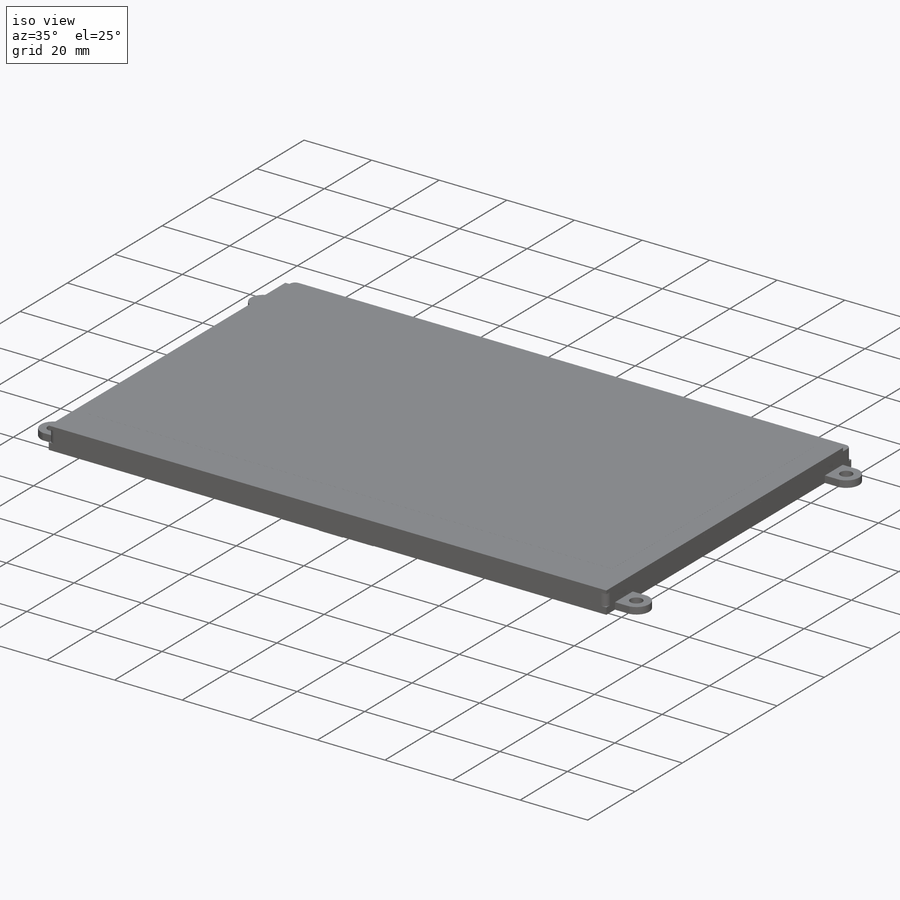
[diagram: iso view]
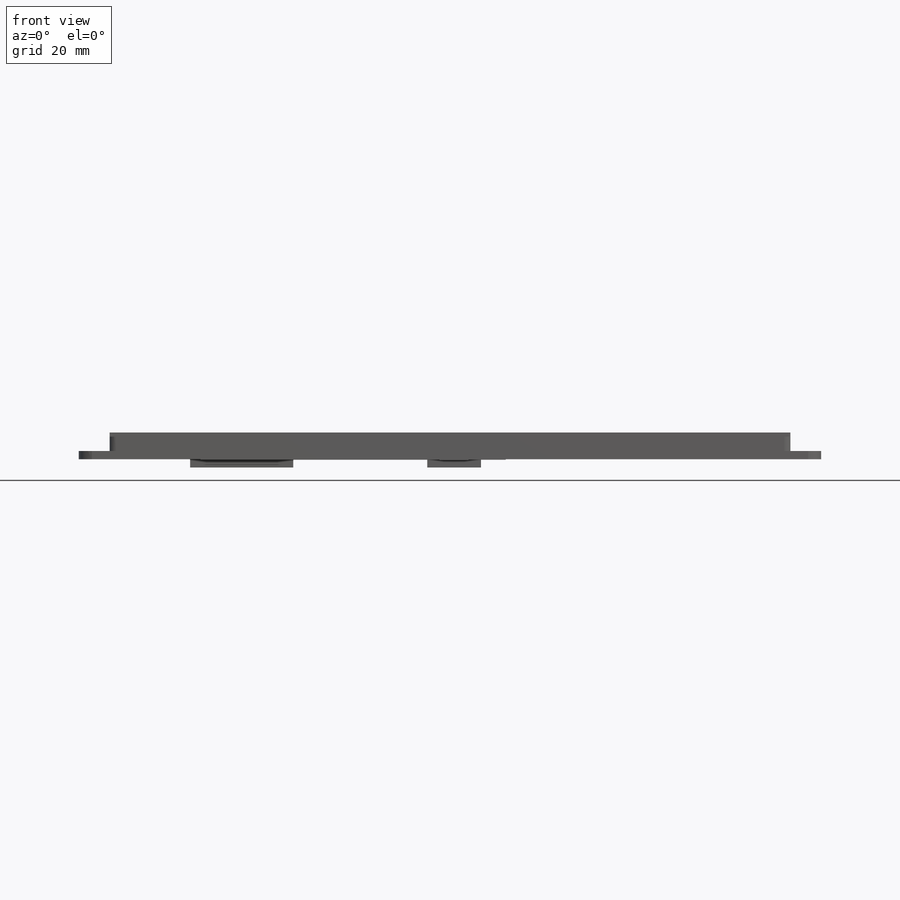
[diagram: front view]
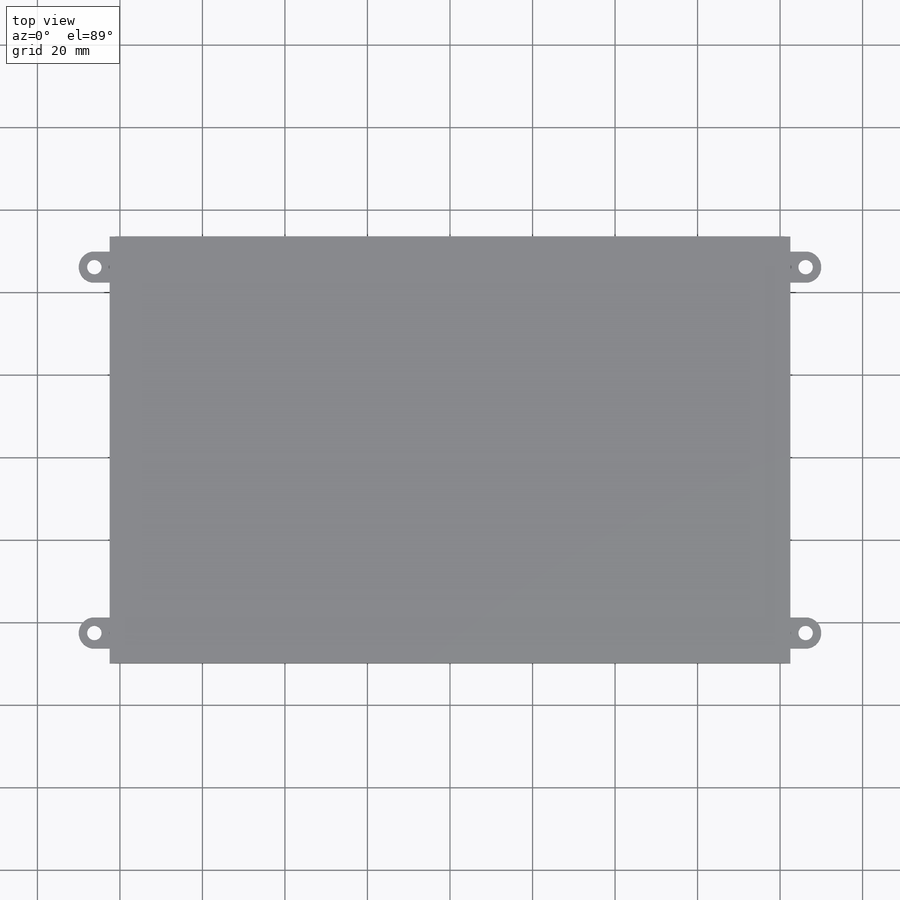
[diagram: top view]
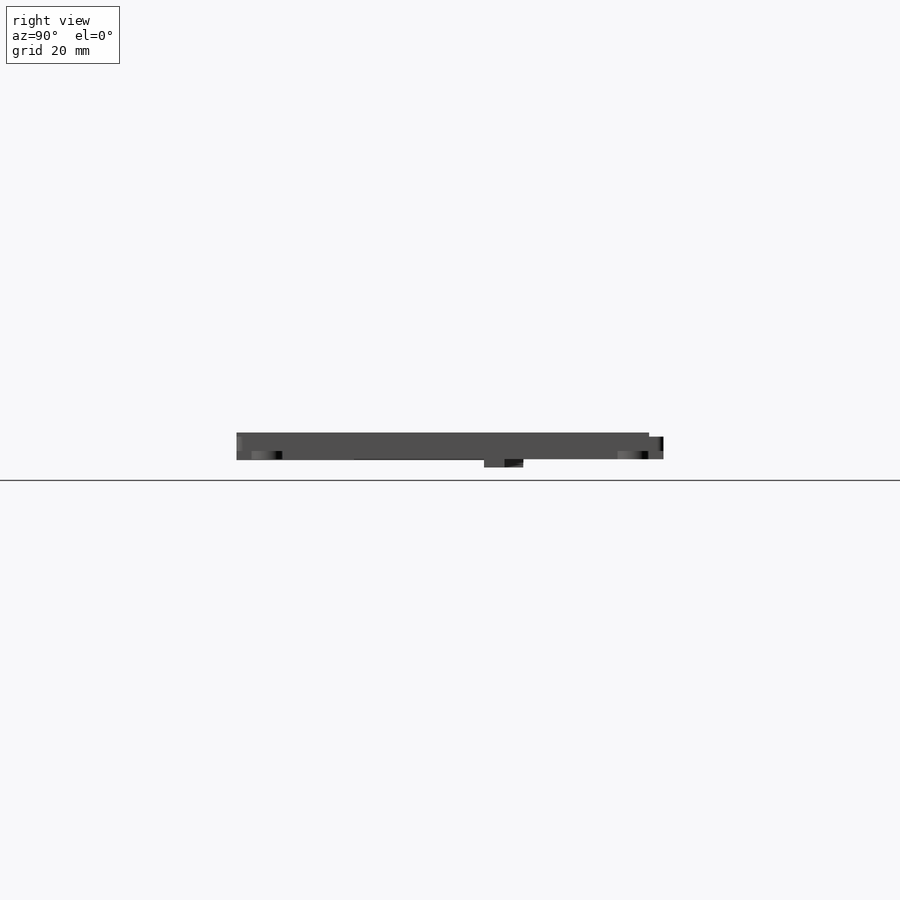
[diagram: right view]
SOLIDWORKS PART (.sldprt)
format: sldprt  version: not decoded by parser v0  size: 368,640 bytes
history: native  units: mm
features: sketch x8, extrude x8, plane x4, material x1, fillet x1 (+8 scaffold rows collapsed)
feature tree (30):
  scaffold x8  (default folders/planes/origin — collapsed)
  material  "Matériau <non spécifié>"
  plane  "Plan de face"
  plane  "Plan de dessus"
  plane  "Plan de droite"
  sketch  "Esquisse1"  dims[D1=100.0mm D2=165.0mm]
  extrude  "Boss.-Extru.1"  Depth=1mm
  sketch  "Esquisse3"  dims[D1=103.5mm]
  extrude  "Boss.-Extru.2"  Depth=3.5mm
  fillet  "Congé1"  Radius=1.5mm
  sketch  "Esquisse4"  dims[c1.D3=3.5mm c1.D1=7.5mm c1.D2=7.4mm c1.D4=7.5mm c2.D3=2.5mm c2.D5=3.7mm c2.D6=7.4mm]
  extrude  "Boss.-Extru.3"  Depth=2mm
  sketch  "Esquisse6"  dims[D1=28.5mm D2=54.0mm D3=20.0mm D4=47.0mm D5=64.0mm D6=24.0mm D7=69.0mm]
  extrude  "Boss.-Extru.4"  Depth=0.1mm
  sketch  "Esquisse7"  dims[D1=25.0mm D2=5.5mm]
  extrude  "Boss.-Extru.5"  Depth=2mm
  sketch  "Esquisse9"  dims[D1=7.0mm D2=60.0mm D3=9.0mm]
  extrude  "Boss.-Extru.6"  Depth=0.1mm
  sketch  "Esquisse10"  dims[D1=5.0mm D2=13.0mm]
  extrude  "Boss.-Extru.8"  Depth=2mm
  sketch  "Esquisse11"  dims[D1=85.0mm D2=155.0mm D3=6.0mm D4=11.0mm D5=100.0mm]
  extrude  "Boss.-Extru.9"  Depth=0.01mm
  plane  "Plan1"
decode coverage: 17 of 17 modeling features carry decoded parameters
note: suppression state not decoded; provenance and decode notes live in map.json
